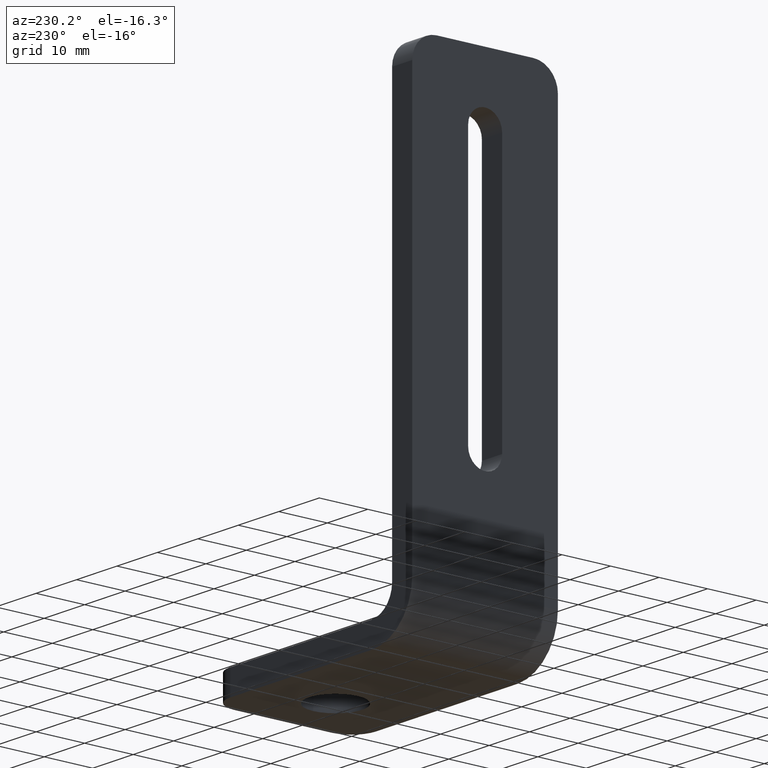
[diagram: clean part render]
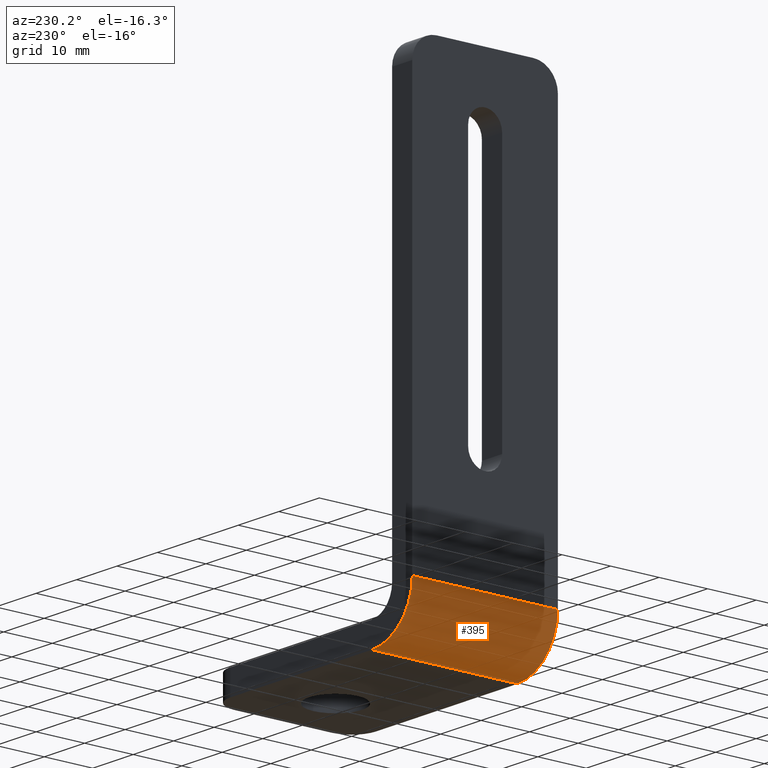
[diagram: same view with one face highlighted and labeled with its STEP entity id]
A machine part, auxiliary view. The second image highlights one B-rep face of the part: STEP entity #395.
In plain terms, the highlighted cylindrical surface (partial cylindrical patch) has radius 10 mm, axis along (0, 1, 0).
Its self-contained STEP definition (entity closure, byte-faithful):
#49=FACE_OUTER_BOUND('',#75,.T.);
#75=EDGE_LOOP('',(#330,#331,#332,#333));
#91=LINE('',#586,#127);
#115=LINE('',#660,#151);
#127=VECTOR('',#464,30.);
#151=VECTOR('',#538,30.);
#171=CIRCLE('',#435,10.);
#172=CIRCLE('',#436,10.);
#181=VERTEX_POINT('',#583);
#182=VERTEX_POINT('',#585);
#201=VERTEX_POINT('',#636);
#207=VERTEX_POINT('',#659);
#217=EDGE_CURVE('',#181,#182,#91,.T.);
#253=EDGE_CURVE('',#201,#207,#115,.T.);
#254=EDGE_CURVE('',#182,#201,#171,.T.);
#255=EDGE_CURVE('',#207,#181,#172,.T.);
#330=ORIENTED_EDGE('',*,*,#253,.F.);
#331=ORIENTED_EDGE('',*,*,#254,.F.);
#332=ORIENTED_EDGE('',*,*,#217,.F.);
#333=ORIENTED_EDGE('',*,*,#255,.F.);
#378=CYLINDRICAL_SURFACE('',#434,10.);
#395=ADVANCED_FACE('',(#49),#378,.T.);
#434=AXIS2_PLACEMENT_3D('',#658,#536,#537);
#435=AXIS2_PLACEMENT_3D('',#661,#539,#540);
#436=AXIS2_PLACEMENT_3D('',#662,#541,#542);
#464=DIRECTION('',(0.,1.,0.));
#536=DIRECTION('center_axis',(0.,1.,0.));
#537=DIRECTION('ref_axis',(0.,0.,-1.));
#538=DIRECTION('',(7.90757140046408E-19,-1.,4.84199100230374E-35));
#539=DIRECTION('center_axis',(0.,1.,0.));
#540=DIRECTION('ref_axis',(0.,0.,-1.));
#541=DIRECTION('center_axis',(0.,-1.,0.));
#542=DIRECTION('ref_axis',(-1.,0.,-1.11022302462516E-16));
#583=CARTESIAN_POINT('',(-15.,-15.,0.));
#585=CARTESIAN_POINT('',(-15.,15.,0.));
#586=CARTESIAN_POINT('',(-15.,-7.5,0.));
#636=CARTESIAN_POINT('',(-25.,15.,10.));
#658=CARTESIAN_POINT('Origin',(-15.,0.,10.));
#659=CARTESIAN_POINT('',(-25.,-15.,10.));
#660=CARTESIAN_POINT('',(-25.,-8.0746300964214E-19,10.));
#661=CARTESIAN_POINT('Origin',(-15.,15.,10.));
#662=CARTESIAN_POINT('Origin',(-15.,-15.,10.));